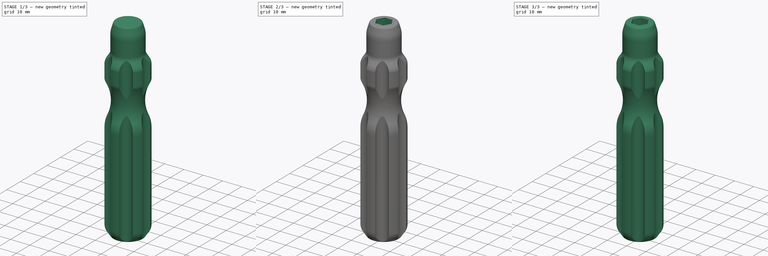
[diagram: build sequence overview — one tinted view per stage of 3, left to right]
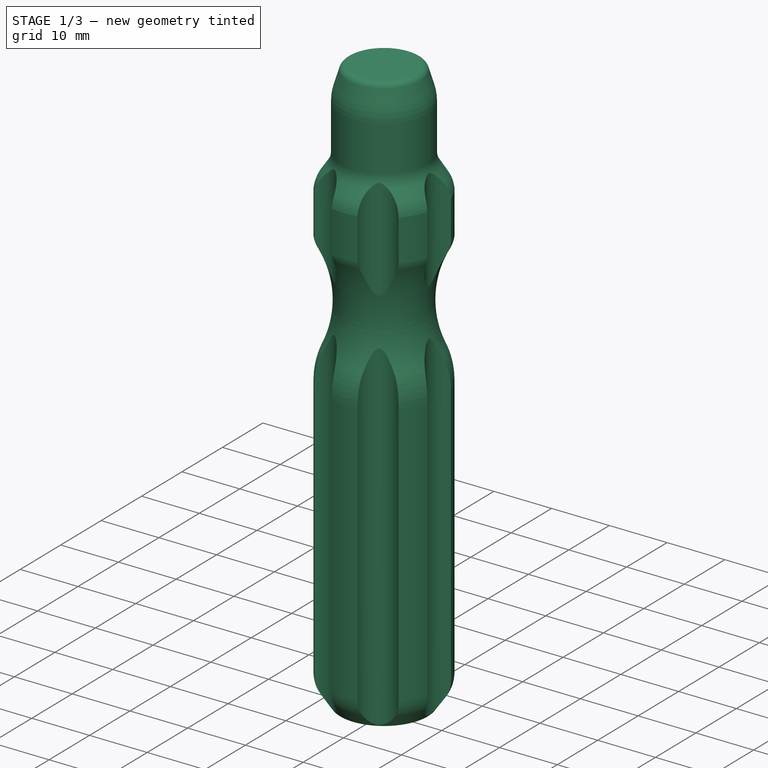
[diagram: stage 1 of 3 — iso view after this stage's code; geometry added in this stage tinted green]
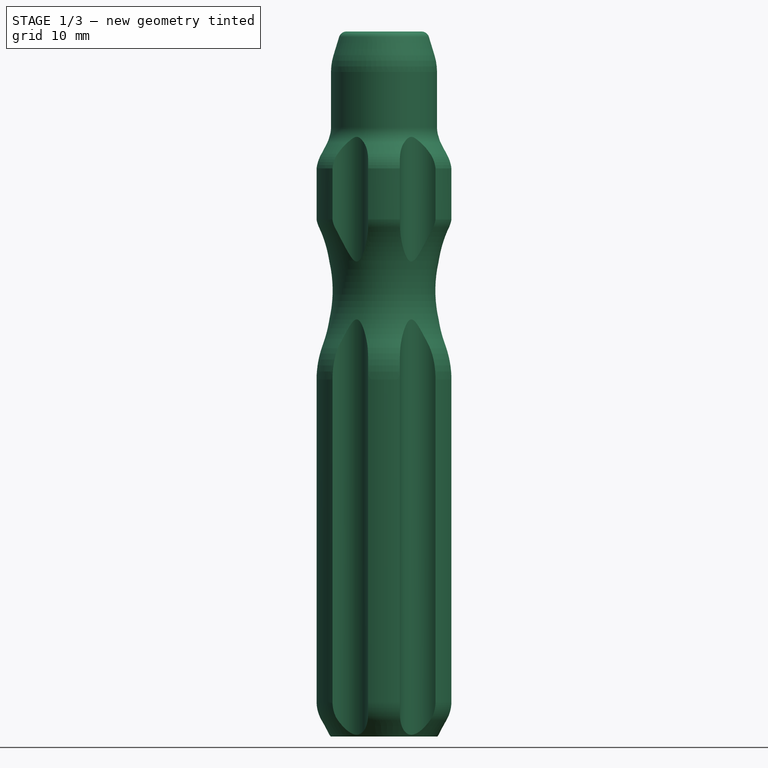
[diagram: stage 1 of 3 — front view after this stage's code; geometry added in this stage tinted green]
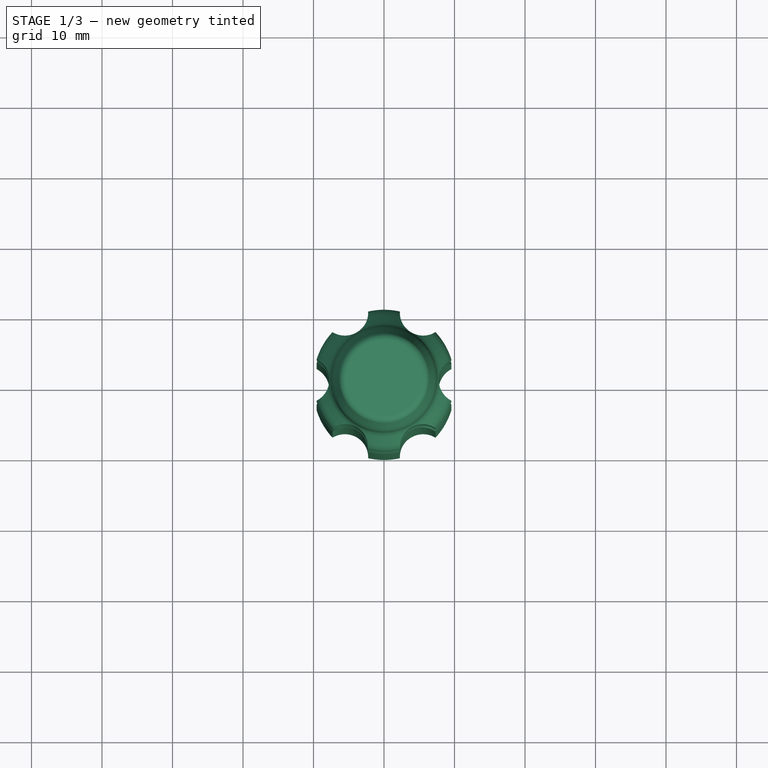
[diagram: stage 1 of 3 — top view after this stage's code; geometry added in this stage tinted green]
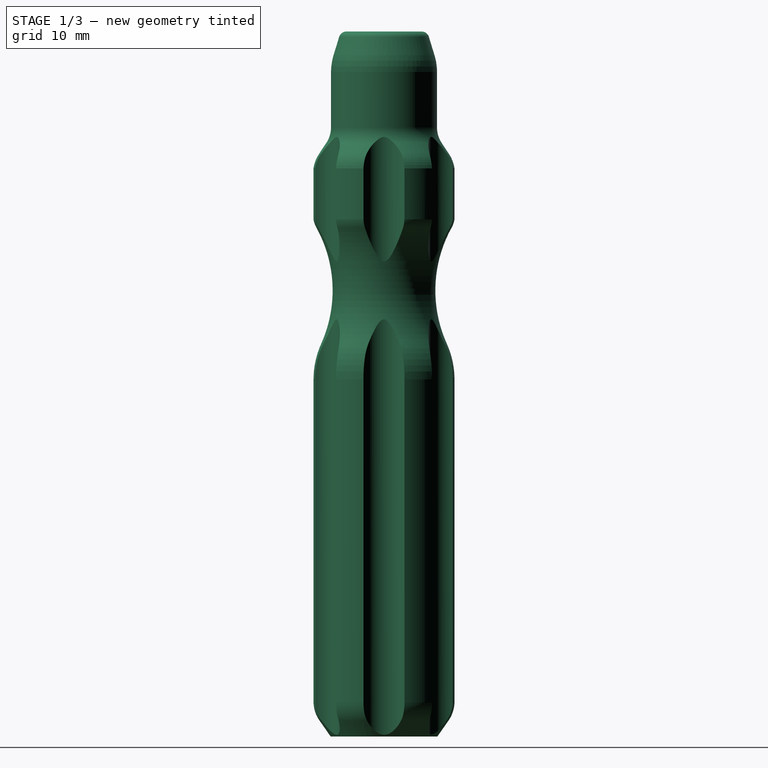
[diagram: stage 1 of 3 — right view after this stage's code; geometry added in this stage tinted green]
FCSTD DOCUMENT  (FreeCAD 0.22R37668 (Git))
Label: Hex Driver
License: All rights reserved
LicenseURL: http://en.wikipedia.org/wiki/All_rights_reserved
objects: Sketcher::SketchObject×4, PartDesign::Fillet×3, PartDesign::Body×2, PartDesign::Pocket×2, PartDesign::Pad×1, PartDesign::Revolution×1, PartDesign::Boolean×1
note: 21 computed .brp shape members not serialized (recipe doc carries the construction recipe); baked Part::Feature solids carry a one-line shape summary decoded from their .brp

FEATURE [Sketcher::SketchObject] Sketch
  AttachmentSupport = -> [XY_Plane]
  FullyConstrained = true
  MapMode = 5
  Support = -> [XY_Plane]
  sketch-geometry (19):
    g0: LineSegment StartX=11 StartY=-6e-16 StartZ=0 EndX=5.5 EndY=9.52628 EndZ=0
    g1: LineSegment StartX=5.5 StartY=9.52628 StartZ=0 EndX=-5.5 EndY=9.52628 EndZ=0
    g2: LineSegment StartX=-5.5 StartY=9.52628 StartZ=0 EndX=-11 EndY=-2.34e-14 EndZ=0
    g3: LineSegment StartX=-11 StartY=-2.34e-14 StartZ=0 EndX=-5.5 EndY=-9.52628 EndZ=0
    g4: LineSegment StartX=-5.5 StartY=-9.52628 StartZ=0 EndX=5.5 EndY=-9.52628 EndZ=0
    g5: LineSegment StartX=5.5 StartY=-9.52628 StartZ=0 EndX=11 EndY=-6e-16 EndZ=0
    g6: Circle CenterX=0 CenterY=0 CenterZ=0 NormalX=0 NormalY=0 NormalZ=1 AngleXU=0 Radius=11
    g7: ArcOfCircle CenterX=5.5 CenterY=9.52628 CenterZ=0 NormalX=0 NormalY=0 NormalZ=1 AngleXU=0 Radius=3.25 StartAngle=3.07519 EndAngle=5.30239
    g8: ArcOfCircle CenterX=11 CenterY=-6e-16 CenterZ=0 NormalX=0 NormalY=0 NormalZ=1 AngleXU=0 Radius=3.25 StartAngle=2.02799 EndAngle=4.25519
    g9: ArcOfCircle CenterX=5.5 CenterY=-9.52628 CenterZ=0 NormalX=0 NormalY=0 NormalZ=1 AngleXU=0 Radius=3.25 StartAngle=0.980794 EndAngle=3.208
    g10: ArcOfCircle CenterX=-5.5 CenterY=-9.52628 CenterZ=0 NormalX=0 NormalY=0 NormalZ=1 AngleXU=0 Radius=3.25 StartAngle=6.21678 EndAngle=8.44398
    g11: ArcOfCircle CenterX=-11 CenterY=-2.34e-14 CenterZ=0 NormalX=0 NormalY=0 NormalZ=1 AngleXU=0 Radius=3.25 StartAngle=5.16958 EndAngle=7.39679
    g12: ArcOfCircle CenterX=-5.5 CenterY=9.52628 CenterZ=0 NormalX=0 NormalY=0 NormalZ=1 AngleXU=0 Radius=3.25 StartAngle=4.12239 EndAngle=6.34959
    g13: ArcOfCircle CenterX=0 CenterY=0 CenterZ=0 NormalX=0 NormalY=0 NormalZ=1 AngleXU=0 Radius=10 StartAngle=1.34312 EndAngle=1.79847
    g14: ArcOfCircle CenterX=0 CenterY=0 CenterZ=0 NormalX=0 NormalY=0 NormalZ=1 AngleXU=0 Radius=10 StartAngle=0.295921 EndAngle=0.751277
    g15: ArcOfCircle CenterX=0 CenterY=0 CenterZ=0 NormalX=0 NormalY=0 NormalZ=1 AngleXU=0 Radius=10 StartAngle=5.53191 EndAngle=5.98726
    g16: ArcOfCircle CenterX=0 CenterY=0 CenterZ=0 NormalX=0 NormalY=0 NormalZ=1 AngleXU=0 Radius=10 StartAngle=4.48471 EndAngle=4.94007
    g17: ArcOfCircle CenterX=0 CenterY=0 CenterZ=0 NormalX=0 NormalY=0 NormalZ=1 AngleXU=0 Radius=10 StartAngle=3.43751 EndAngle=3.89287
    g18: ArcOfCircle CenterX=0 CenterY=0 CenterZ=0 NormalX=0 NormalY=0 NormalZ=1 AngleXU=0 Radius=10 StartAngle=2.39032 EndAngle=2.84567
  constraints (52):
    c: Coincident(g0,g1)
    c: Coincident(g1,g2)
    c: Coincident(g2,g3)
    c: Coincident(g3,g4)
    c: Coincident(g4,g5)
    c: Coincident(g5,g0)
    c: Equal(g0, g1-g5) x5
    c: PointOnObject(g0,g6)
    c: PointOnObject(g1,g6)
    c: PointOnObject(g2,g6)
    c: PointOnObject(g3,g6)
    c: PointOnObject(g4,g6)
    c: PointOnObject(g5,g6)
    c: Radius(g6) = 11
    c: Coincident(g6,g-1)
    c: Diameter(g7) = 6.5
    c: Coincident(g7,g0)
    c: Coincident(g8,g0)
    c: Coincident(g9,g4)
    c: Coincident(g10,g3)
    c: Coincident(g11,g2)
    c: Coincident(g12,g1)
    c: Equal(g7,g8)
    c: Equal(g8,g9)
    c: Equal(g9,g10)
    c: Equal(g10,g11)
    c: Equal(g11,g12)
    c: Diameter(g13) = 20
    c: Coincident(g13,g6)
    c: Coincident(g13,g7)
    c: Coincident(g14,g7)
    c: Equal(g13,g14)
    c: Coincident(g14,g8)
    c: Coincident(g13,g14)
    c: Coincident(g15,g8)
    c: Equal(g13,g15)
    c: Coincident(g15,g9)
    c: Coincident(g13,g15)
    c: Coincident(g16,g9)
    c: Equal(g13,g16)
    c: Coincident(g16,g10)
    c: Coincident(g13,g16)
    c: Coincident(g17,g10)
    c: Equal(g13,g17)
    c: Coincident(g17,g11)
    c: Coincident(g13,g17)
    c: Coincident(g18,g11)
    c: Equal(g13,g18)
    c: Coincident(g18,g12)
    c: Coincident(g13,g18)
    c: Coincident(g13,g12)
    c: PointOnObject(g0,g-1)
FEATURE [PartDesign::Pad] Pad
  Direction = (0,0,1)
  Length = 100
  Length2 = 10
  Profile = -> Sketch
  ReferenceAxis = -> Sketch [N_Axis]
  Suppressed = false
  Type = 0
FEATURE [PartDesign::Body] Body
  AllowCompound = false
  Group = -> [Sketch,Pad]
  Origin = -> Origin
  Tip = -> Pad
FEATURE [Sketcher::SketchObject] Sketch001
  AttachmentSupport = -> [YZ_Plane001]
  FullyConstrained = false
  MapMode = 5
  Placement = pos=(0,0,0) rot=(0.57735,0.57735,0.57735;2.0944rad)
  Support = -> [YZ_Plane001]
  sketch-geometry (22):
    g0: LineSegment StartX=0 StartY=100 StartZ=0 EndX=5.33223 EndY=100 EndZ=0
    g1: LineSegment StartX=6.36982 StartY=99.2327 StartZ=0 EndX=7.16417 EndY=96.6404 EndZ=0
    g2: LineSegment StartX=7.52174 StartY=94.253 StartZ=0 EndX=7.52174 EndY=86.3864 EndZ=0
    g3: LineSegment StartX=8.18021 StartY=84.2025 StartZ=0 EndX=9.20885 EndY=82.6517 EndZ=0
    g4: LineSegment StartX=10.0562 StartY=79.8413 StartZ=0 EndX=10.0562 EndY=73.9965 EndZ=0
    g5: ArcOfCircle CenterX=25.6441 CenterY=63.2694 CenterZ=0 NormalX=0 NormalY=0 NormalZ=1 AngleXU=0 Radius=18.3593 StartAngle=2.63594 EndAngle=3.56551
    g6: LineSegment StartX=10 StartY=50.6519 StartZ=0 EndX=10 EndY=4.95803 EndZ=0
    g7: LineSegment StartX=9.14879 StartY=2.25249 StartZ=0 EndX=7.57573 EndY=0 EndZ=0
    g8: LineSegment StartX=0 StartY=0 StartZ=0 EndX=7.57573 EndY=0 EndZ=0
    g9: LineSegment StartX=0 StartY=100 StartZ=0 EndX=0 EndY=0 EndZ=0
    g10: ArcOfCircle CenterX=5.33223 CenterY=98.9148 CenterZ=0 NormalX=0 NormalY=0 NormalZ=1 AngleXU=0 Radius=1.08521 StartAngle=0.297339 EndAngle=1.5708
    g11: GeomPoint X=6.13471 Y=100 Z=0
    g12: ArcOfCircle CenterX=-0.626981 CenterY=94.253 CenterZ=0 NormalX=0 NormalY=0 NormalZ=1 AngleXU=0 Radius=8.14872 StartAngle=3e-16 EndAngle=0.297339
    g13: GeomPoint X=7.52174 Y=95.4735 Z=0
    g14: ArcOfCircle CenterX=11.4727 CenterY=86.3864 CenterZ=0 NormalX=0 NormalY=0 NormalZ=1 AngleXU=0 Radius=3.95099 StartAngle=3.14159 EndAngle=3.72726
    g15: GeomPoint X=7.52174 Y=85.1952 Z=0
    g16: ArcOfCircle CenterX=4.97191 CenterY=79.8413 CenterZ=0 NormalX=0 NormalY=0 NormalZ=1 AngleXU=0 Radius=5.08429 StartAngle=0 EndAngle=0.585672
    g17: GeomPoint X=10.0562 Y=81.3742 Z=0
    g18: ArcOfCircle CenterX=6.26915 CenterY=73.9965 CenterZ=0 NormalX=0 NormalY=0 NormalZ=1 AngleXU=0 Radius=3.78705 StartAngle=5.77754 EndAngle=6.28319
    g19: ArcOfCircle CenterX=-2.31525 CenterY=50.6519 CenterZ=0 NormalX=0 NormalY=0 NormalZ=1 AngleXU=0 Radius=12.3153 StartAngle=0 EndAngle=0.423918
    g20: ArcOfCircle CenterX=5.27467 CenterY=4.95803 CenterZ=0 NormalX=0 NormalY=0 NormalZ=1 AngleXU=0 Radius=4.72533 StartAngle=5.67356 EndAngle=6.28319
    g21: GeomPoint X=10 Y=3.47136 Z=0
  constraints (36):
    c: PointOnObject(g0,g-2)
    c: Horizontal(g0)
    c: Vertical(g2)
    c: Vertical(g4)
    c: Vertical(g6)
    c: PointOnObject(g7,g-1)
    c: Coincident(g8,g-1)
    c: Coincident(g8,g7)
    c: Distance(g21,g-2) = 10
    c: Coincident(g9,g0)
    c: Coincident(g9,g8)
    c: DistanceY(g9,g9) = 100
    c: PointOnObject(g11,g0)
    c: PointOnObject(g11,g1)
    c: Tangent(g0,g10) = 1.5708
    c: Tangent(g1,g10) = 1.5708
    c: PointOnObject(g13,g1)
    c: PointOnObject(g13,g2)
    c: Tangent(g1,g12) = 1.5708
    c: Tangent(g2,g12) = 1.5708
    c: PointOnObject(g15,g2)
    c: PointOnObject(g15,g3)
    c: Tangent(g2,g14) = -1.5708
    c: Tangent(g3,g14) = -1.5708
    c: PointOnObject(g17,g3)
    c: PointOnObject(g17,g4)
    c: Tangent(g3,g16) = 1.5708
    c: Tangent(g4,g16) = 1.5708
    c: Tangent(g4,g18) = 1.5708
    c: Tangent(g5,g18) = 1.5708
    c: Tangent(g5,g19) = 1.5708
    c: Tangent(g6,g19) = 1.5708
    c: PointOnObject(g21,g6)
    c: PointOnObject(g21,g7)
    c: Tangent(g6,g20) = 1.5708
    c: Tangent(g7,g20) = 1.5708
FEATURE [PartDesign::Revolution] Revolution
  Angle = 360
  Angle2 = 60
  Axis = (0,0,1)
  Base = (0,0,0)
  Placement = pos=(0,0,0) rot=(1,1,1;2.0944rad)
  Profile = -> Sketch001
  ReferenceAxis = -> Sketch001 [V_Axis]
  Reversed = true
  Suppressed = false
  Type = 0
FEATURE [PartDesign::Boolean] Boolean
  BaseFeature = -> Revolution
  Group = -> [Body]
  Suppressed = false
  Type = 2
  UsePlacement = true
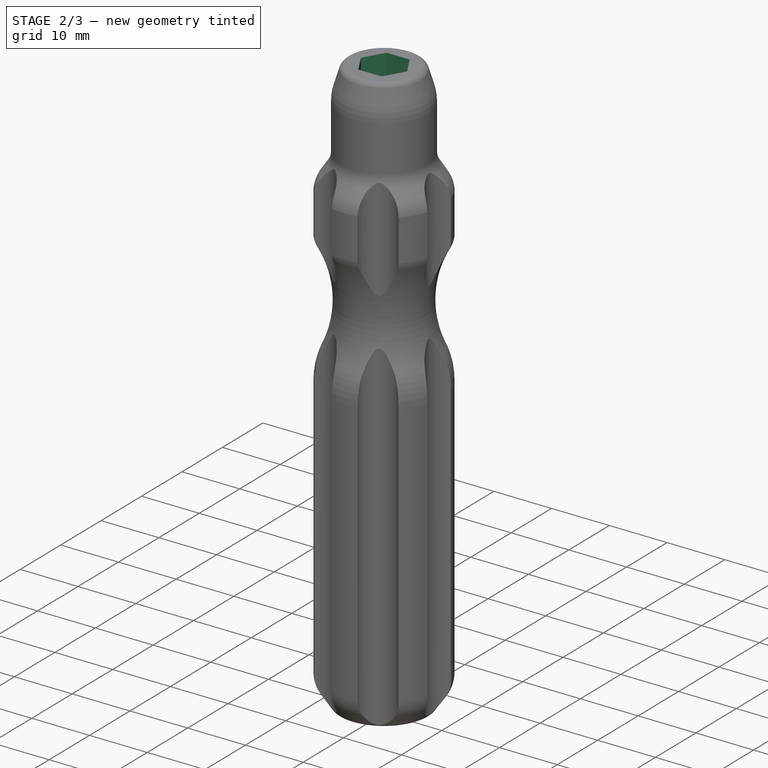
[diagram: stage 2 of 3 — iso view after this stage's code; geometry added in this stage tinted green]
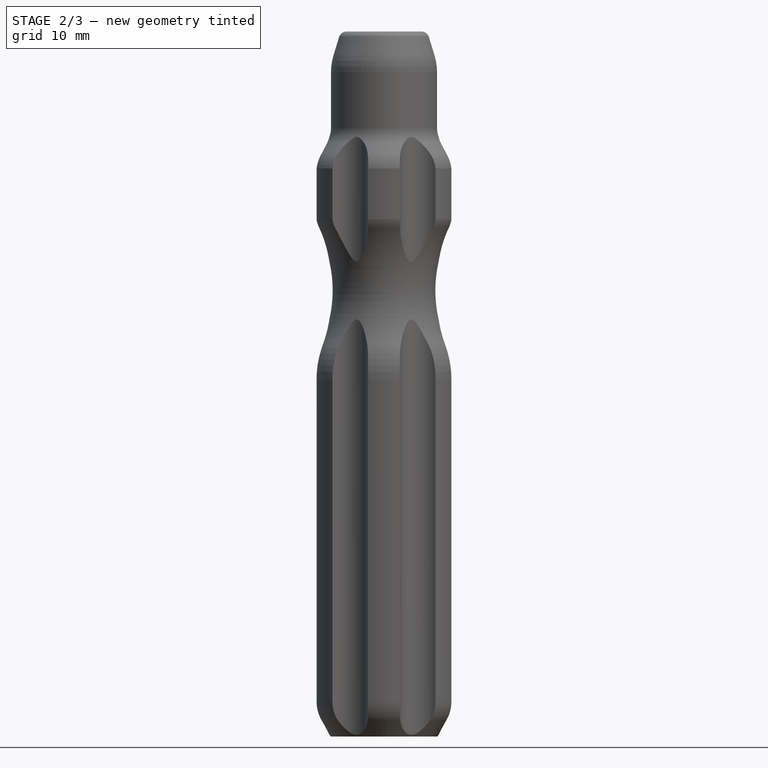
[diagram: stage 2 of 3 — front view after this stage's code; geometry added in this stage tinted green]
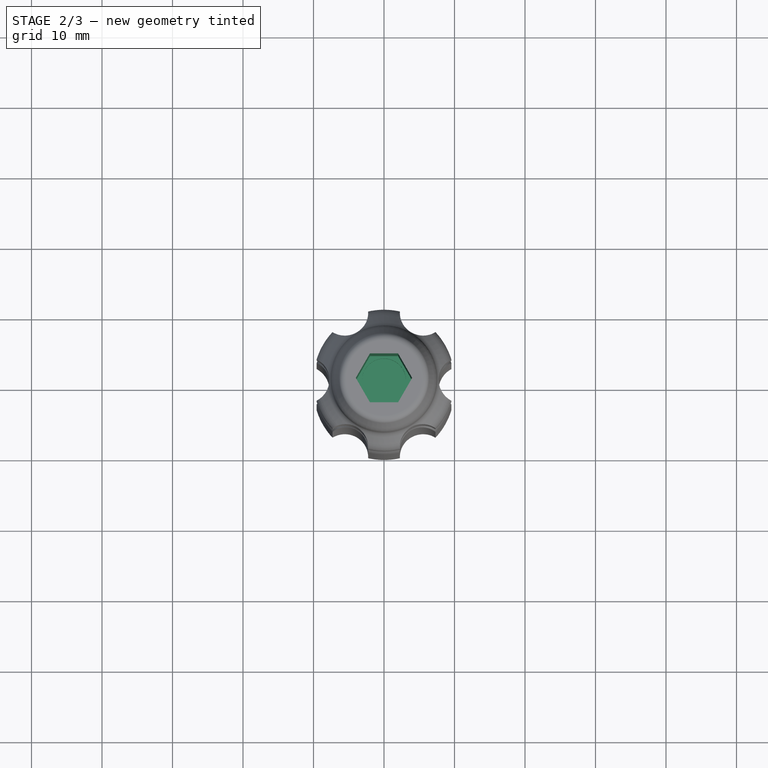
[diagram: stage 2 of 3 — top view after this stage's code; geometry added in this stage tinted green]
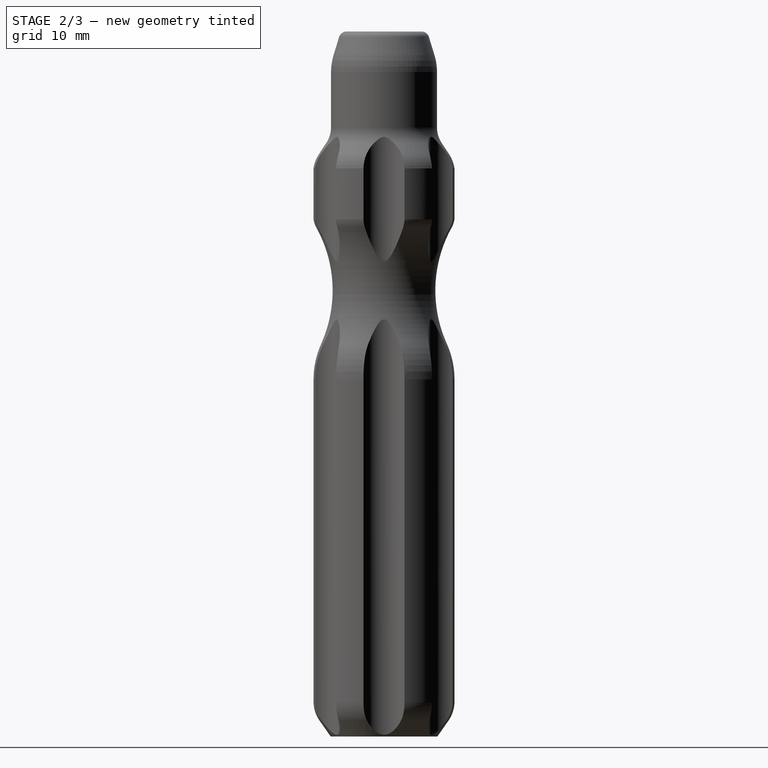
[diagram: stage 2 of 3 — right view after this stage's code; geometry added in this stage tinted green]
FEATURE [Sketcher::SketchObject] Sketch002
  AttachmentSupport = -> [Boolean]
  FullyConstrained = true
  MapMode = 5
  Placement = pos=(-3.33e-14,1.11e-14,100) rot=(0,0,1;0rad)
  Support = -> [Boolean]
  sketch-geometry (7):
    g0: LineSegment StartX=4 StartY=0 StartZ=0 EndX=2 EndY=3.4641 EndZ=0
    g1: LineSegment StartX=2 StartY=3.4641 StartZ=0 EndX=-2 EndY=3.4641 EndZ=0
    g2: LineSegment StartX=-2 StartY=3.4641 StartZ=0 EndX=-4 EndY=-6.8653e-12 EndZ=0
    g3: LineSegment StartX=-4 StartY=-6.8653e-12 StartZ=0 EndX=-2 EndY=-3.4641 EndZ=0
    g4: LineSegment StartX=-2 StartY=-3.4641 StartZ=0 EndX=2 EndY=-3.4641 EndZ=0
    g5: LineSegment StartX=2 StartY=-3.4641 StartZ=0 EndX=4 EndY=1e-16 EndZ=0
    g6: Circle CenterX=0 CenterY=0 CenterZ=0 NormalX=0 NormalY=0 NormalZ=1 AngleXU=0 Radius=4
  constraints (16):
    c: Coincident(g0,g1)
    c: Coincident(g1,g2)
    c: Coincident(g2,g3)
    c: Coincident(g3,g4)
    c: Coincident(g4,g5)
    c: Coincident(g5,g0)
    c: Equal(g0, g1-g5) x5
    c: PointOnObject(g0,g6)
    c: PointOnObject(g1,g6)
    c: PointOnObject(g2,g6)
    c: PointOnObject(g3,g6)
    c: PointOnObject(g4,g6)
    c: PointOnObject(g5,g6)
    c: Radius(g6) = 4
    c: Coincident(g6,g-1)
    c: PointOnObject(g0,g-1)
FEATURE [PartDesign::Pocket] Pocket
  BaseFeature = -> Boolean
  Direction = (0,0,-1)
  Length = 22
  Length2 = 5
  Profile = -> Sketch002
  ReferenceAxis = -> Sketch002 [N_Axis]
  Suppressed = false
  Type = 0
FEATURE [Sketcher::SketchObject] Sketch003
  AttachmentSupport = -> [Pocket]
  FullyConstrained = true
  MapMode = 5
  Placement = pos=(0,0,78) rot=(0,0,1;0rad)
  Support = -> [Pocket]
  sketch-geometry (1):
    g0: Circle CenterX=0 CenterY=0 CenterZ=0 NormalX=0 NormalY=0 NormalZ=1 AngleXU=0 Radius=3.125
  constraints (2):
    c: Diameter(g0) = 6.25
    c: Coincident(g0,g-1)
FEATURE [PartDesign::Pocket] Pocket001
  BaseFeature = -> Pocket
  Direction = (0,0,-1)
  Length = 1.75
  Length2 = 5
  Profile = -> Sketch003
  ReferenceAxis = -> Sketch003 [N_Axis]
  Suppressed = false
  Type = 0
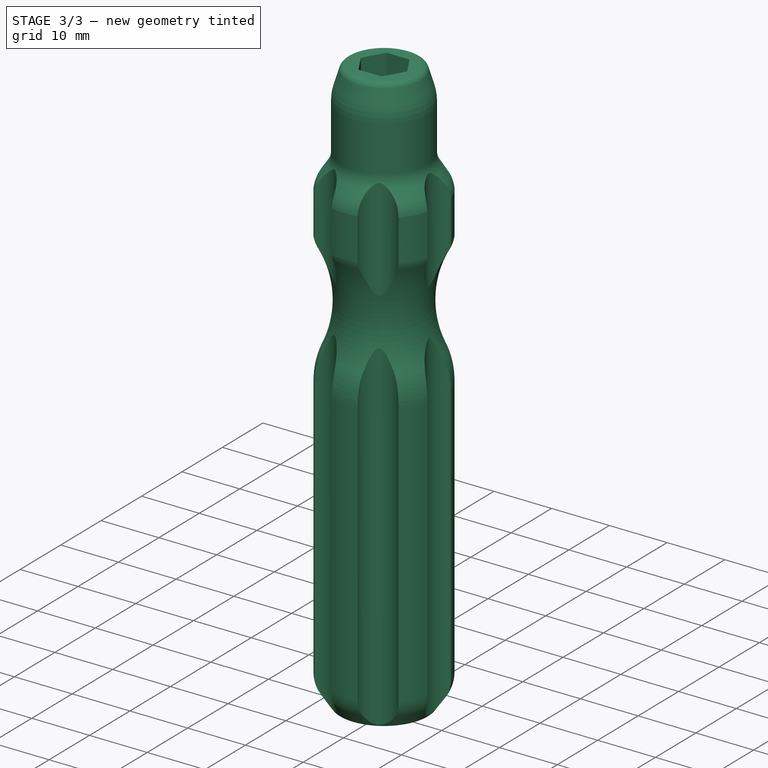
[diagram: stage 3 of 3 — iso view after this stage's code; geometry added in this stage tinted green]
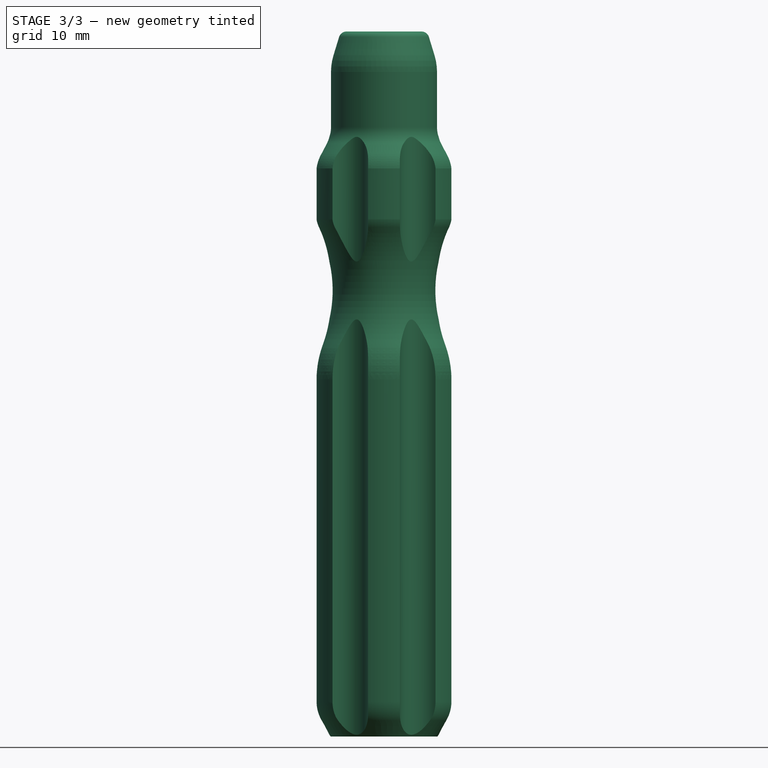
[diagram: stage 3 of 3 — front view after this stage's code; geometry added in this stage tinted green]
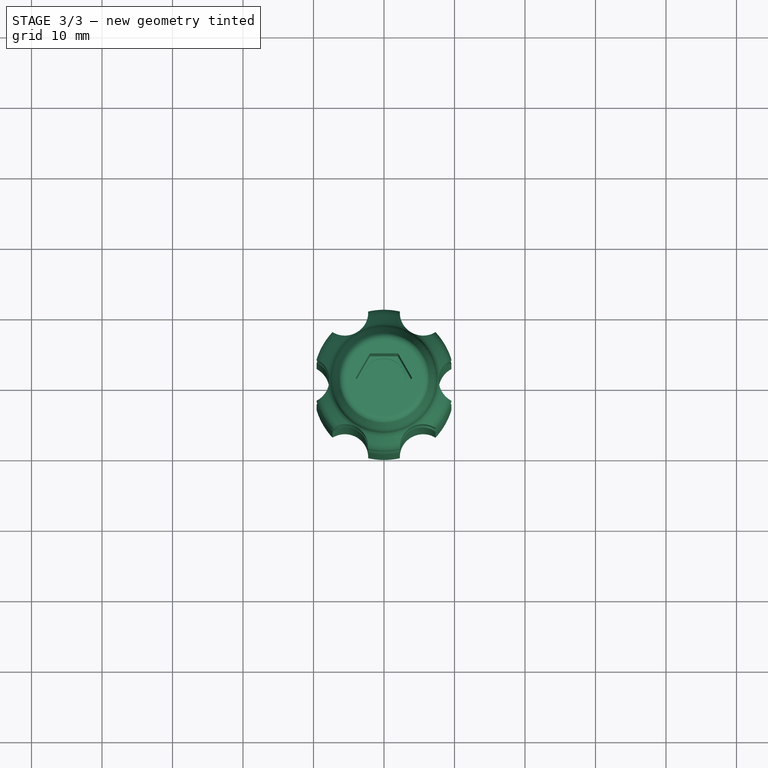
[diagram: stage 3 of 3 — top view after this stage's code; geometry added in this stage tinted green]
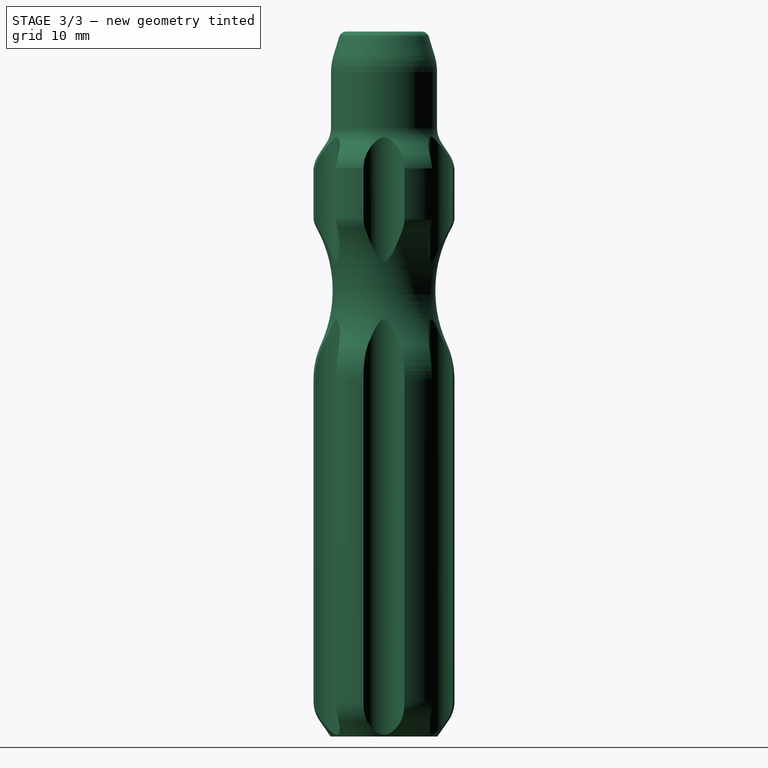
[diagram: stage 3 of 3 — right view after this stage's code; geometry added in this stage tinted green]
FEATURE [PartDesign::Fillet] Fillet001
  Base = -> Pocket001 [Face21,Face23,Face19,Face17,Face27,Face25,Face59,Face57,Face55,Face53,Face51,Face61]
  BaseFeature = -> Pocket001
  Radius = 0.5
  SupportTransform = false
  Suppressed = false
  UseAllEdges = false
FEATURE [PartDesign::Fillet] Fillet
  Base = -> Pocket001 [Face1]
  BaseFeature = -> Pocket001
  Radius = 0.5
  SupportTransform = false
  Suppressed = false
  UseAllEdges = false
FEATURE [PartDesign::Fillet] Fillet002
  Base = -> Fillet [Edge31,Edge27,Edge23,Edge26,Edge30,Edge33]
  BaseFeature = -> Fillet
  Radius = 0.25
  SupportTransform = false
  Suppressed = false
  UseAllEdges = false
FEATURE [PartDesign::Body] Body001
  AllowCompound = false
  Group = -> [Sketch001,Revolution,Boolean,Sketch002,Pocket,Sketch003,Pocket001,Fillet001,Fillet,Fillet002]
  Origin = -> Origin001
  Tip = -> Fillet002
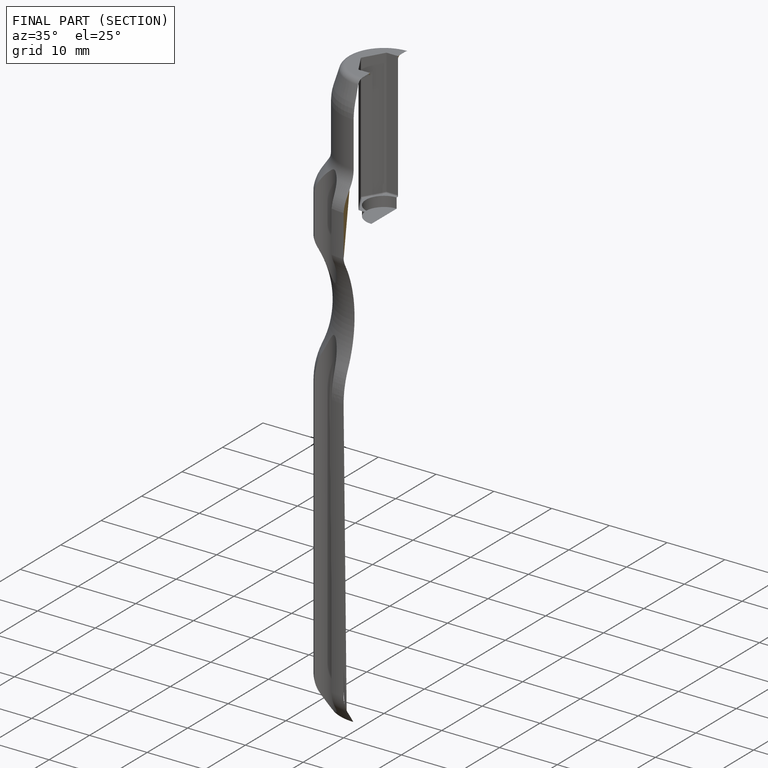
[diagram: finished part — half-section view (interior)]
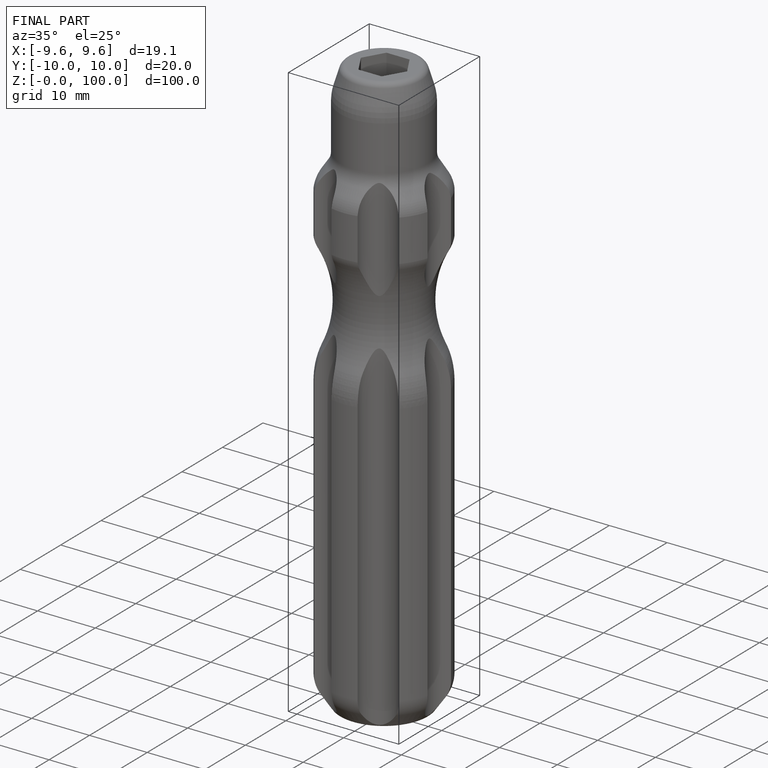
[diagram: finished part — iso view with bounding-box wireframe]
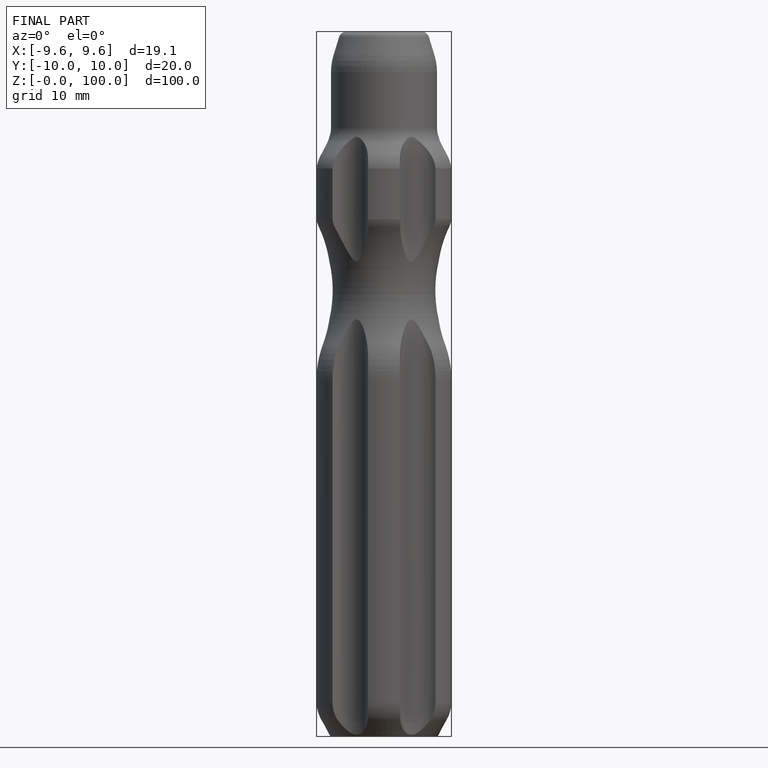
[diagram: finished part — front view with bounding-box wireframe]
